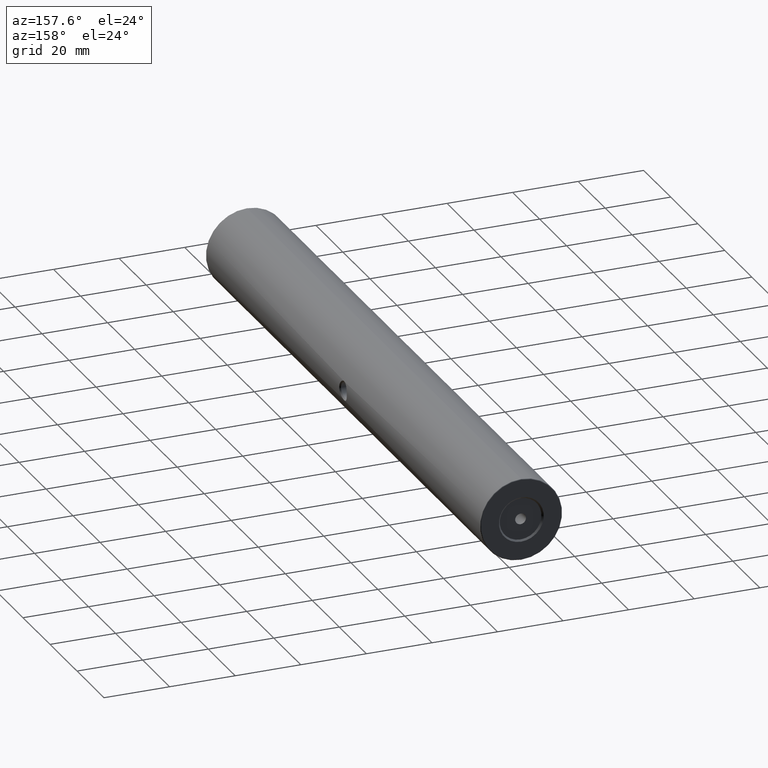
[diagram: clean part render]
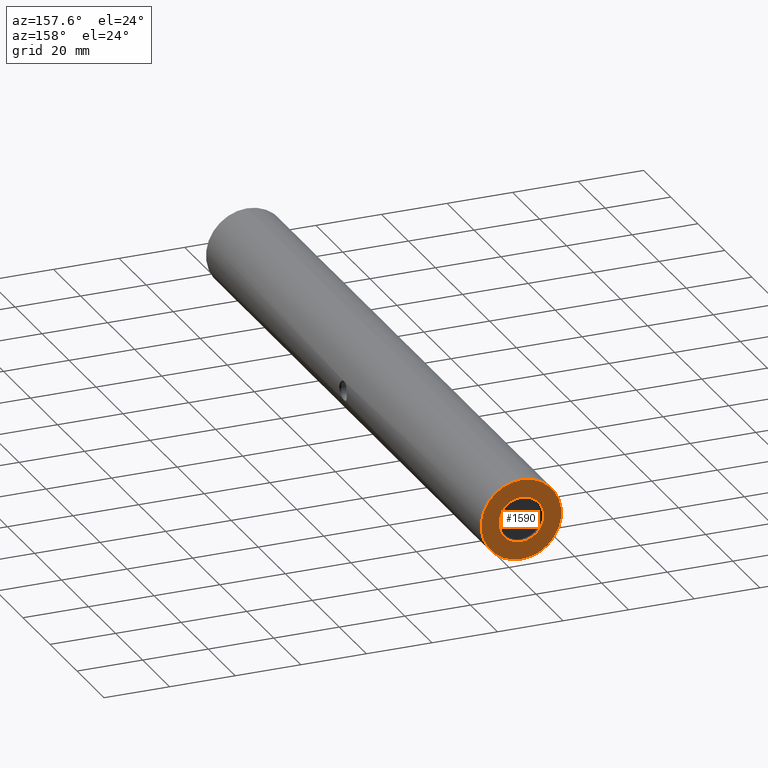
[diagram: same view with one face highlighted and labeled with its STEP entity id]
A machine part, auxiliary view. The second image highlights one B-rep face of the part: STEP entity #1590.
In plain terms, the highlighted planar face has unit normal (0, 1, 0).
Its self-contained STEP definition (entity closure, byte-faithful):
#59 = EDGE_CURVE ( 'NONE', #960, #3350, #273, .T. ) ;
#72 = CARTESIAN_POINT ( 'NONE',  ( -22.50520183104453409, 102.9982521847693846, 43.15000000000003411 ) ) ;
#88 = DIRECTION ( 'NONE',  ( 0.0000000000000000000, 0.0000000000000000000, 1.000000000000000000 ) ) ;
#240 = DIRECTION ( 'NONE',  ( 0.0000000000000000000, 1.000000000000000000, 0.0000000000000000000 ) ) ;
#250 = EDGE_CURVE ( 'NONE', #925, #878, #662, .T. ) ;
#273 = CIRCLE ( 'NONE', #826, 12.24999999999999645 ) ;
#357 = FACE_BOUND ( 'NONE', #1761, .T. ) ;
#416 = ORIENTED_EDGE ( 'NONE', *, *, #2643, .T. ) ;
#612 = AXIS2_PLACEMENT_3D ( 'NONE', #3231, #2470, #88 ) ;
#662 = CIRCLE ( 'NONE', #2618, 6.849999999999967670 ) ;
#698 = EDGE_LOOP ( 'NONE', ( #2850, #1696 ) ) ;
#727 = CIRCLE ( 'NONE', #612, 12.24999999999999645 ) ;
#826 = AXIS2_PLACEMENT_3D ( 'NONE', #1547, #240, #3418 ) ;
#878 = VERTEX_POINT ( 'NONE', #72 ) ;
#925 = VERTEX_POINT ( 'NONE', #3193 ) ;
#960 = VERTEX_POINT ( 'NONE', #1380 ) ;
#1005 = DIRECTION ( 'NONE',  ( 0.0000000000000000000, 0.0000000000000000000, 1.000000000000000000 ) ) ;
#1040 = DIRECTION ( 'NONE',  ( 0.0000000000000000000, 0.0000000000000000000, 1.000000000000000000 ) ) ;
#1101 = DIRECTION ( 'NONE',  ( 0.0000000000000000000, -0.0000000000000000000, 1.000000000000000000 ) ) ;
#1173 = DIRECTION ( 'NONE',  ( 0.0000000000000000000, 1.000000000000000000, 0.0000000000000000000 ) ) ;
#1243 = CARTESIAN_POINT ( 'NONE',  ( -22.50520183104453409, 102.9982521847693846, 50.00000000000000000 ) ) ;
#1364 = FACE_OUTER_BOUND ( 'NONE', #698, .T. ) ;
#1380 = CARTESIAN_POINT ( 'NONE',  ( -22.50520183104453409, 102.9982521847693846, 62.25000000000000000 ) ) ;
#1547 = CARTESIAN_POINT ( 'NONE',  ( -22.50520183104453409, 102.9982521847693846, 50.00000000000000000 ) ) ;
#1549 = CIRCLE ( 'NONE', #2389, 6.849999999999967670 ) ;
#1590 = ADVANCED_FACE ( 'NONE', ( #1364, #357 ), #2736, .T. ) ;
#1662 = EDGE_CURVE ( 'NONE', #3350, #960, #727, .T. ) ;
#1696 = ORIENTED_EDGE ( 'NONE', *, *, #1662, .T. ) ;
#1761 = EDGE_LOOP ( 'NONE', ( #2499, #416 ) ) ;
#1796 = CARTESIAN_POINT ( 'NONE',  ( -22.50520183104453409, 102.9982521847693846, 37.75000000000000711 ) ) ;
#1920 = CARTESIAN_POINT ( 'NONE',  ( -22.50520183104453409, 102.9982521847693846, 50.00000000000000000 ) ) ;
#2228 = AXIS2_PLACEMENT_3D ( 'NONE', #1920, #1173, #1101 ) ;
#2389 = AXIS2_PLACEMENT_3D ( 'NONE', #3225, #3435, #1040 ) ;
#2470 = DIRECTION ( 'NONE',  ( 0.0000000000000000000, 1.000000000000000000, 0.0000000000000000000 ) ) ;
#2499 = ORIENTED_EDGE ( 'NONE', *, *, #250, .T. ) ;
#2618 = AXIS2_PLACEMENT_3D ( 'NONE', #1243, #3383, #1005 ) ;
#2643 = EDGE_CURVE ( 'NONE', #878, #925, #1549, .T. ) ;
#2736 = PLANE ( 'NONE',  #2228 ) ;
#2850 = ORIENTED_EDGE ( 'NONE', *, *, #59, .T. ) ;
#3193 = CARTESIAN_POINT ( 'NONE',  ( -22.50520183104453409, 102.9982521847693846, 56.84999999999997300 ) ) ;
#3225 = CARTESIAN_POINT ( 'NONE',  ( -22.50520183104453409, 102.9982521847693846, 50.00000000000000000 ) ) ;
#3231 = CARTESIAN_POINT ( 'NONE',  ( -22.50520183104453409, 102.9982521847693846, 50.00000000000000000 ) ) ;
#3350 = VERTEX_POINT ( 'NONE', #1796 ) ;
#3383 = DIRECTION ( 'NONE',  ( -0.0000000000000000000, -1.000000000000000000, -0.0000000000000000000 ) ) ;
#3418 = DIRECTION ( 'NONE',  ( 0.0000000000000000000, 0.0000000000000000000, 1.000000000000000000 ) ) ;
#3435 = DIRECTION ( 'NONE',  ( -0.0000000000000000000, -1.000000000000000000, -0.0000000000000000000 ) ) ;